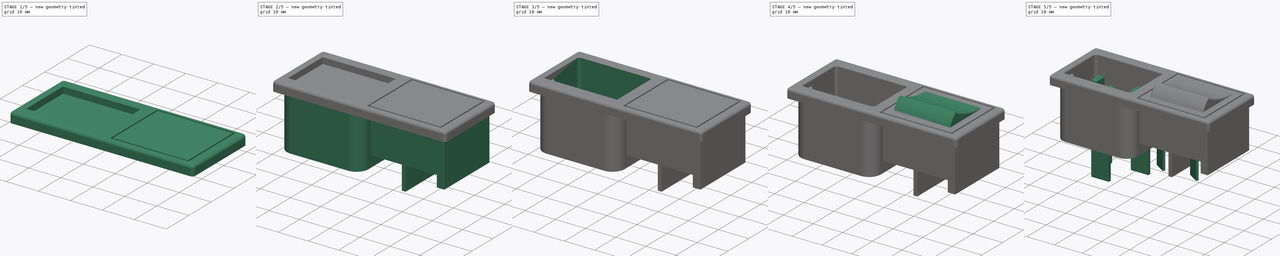
[diagram: build sequence overview — one tinted view per stage of 5, left to right]
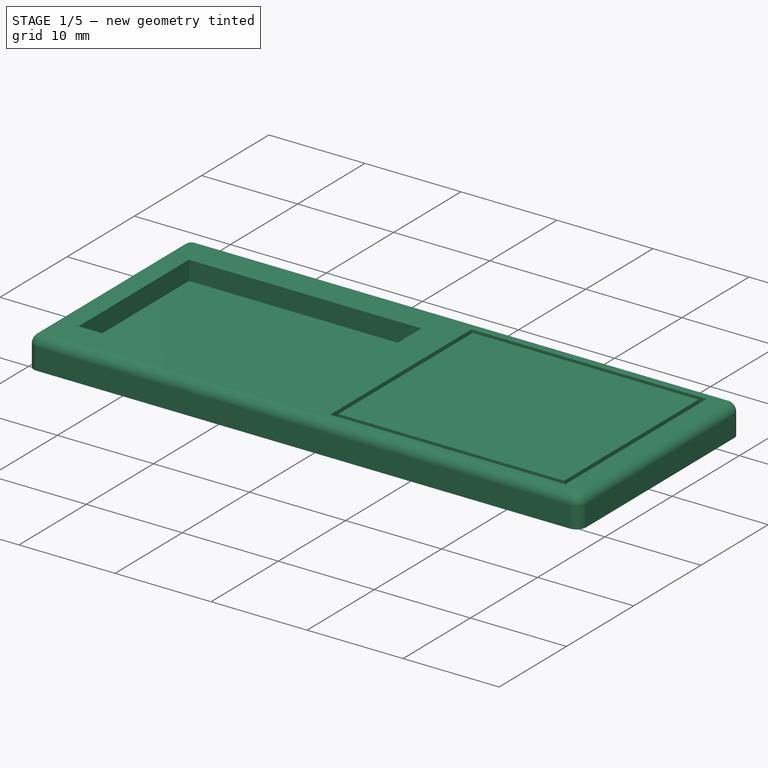
[diagram: stage 1 of 5 — iso view after this stage's code; geometry added in this stage tinted green]
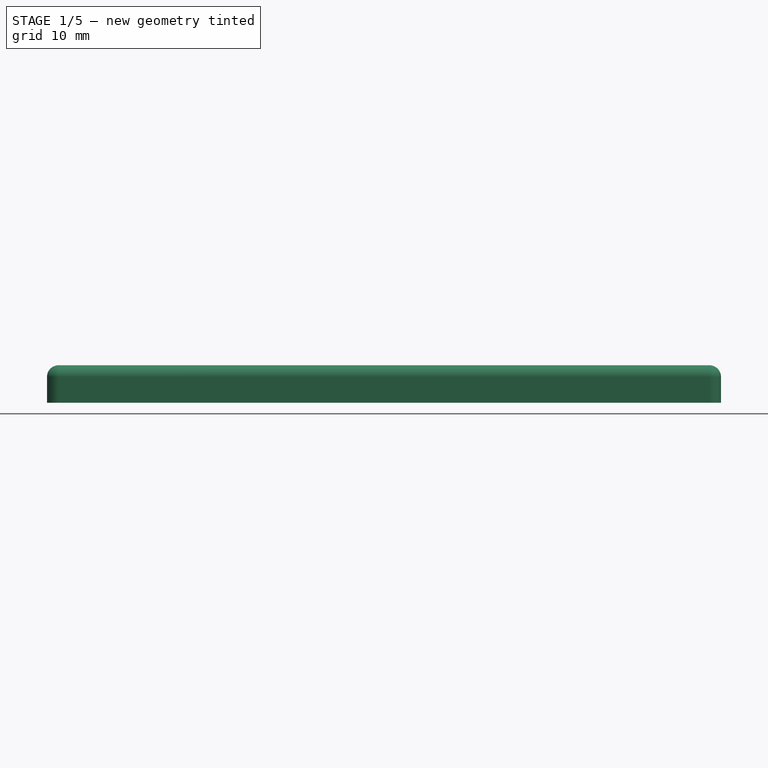
[diagram: stage 1 of 5 — front view after this stage's code; geometry added in this stage tinted green]
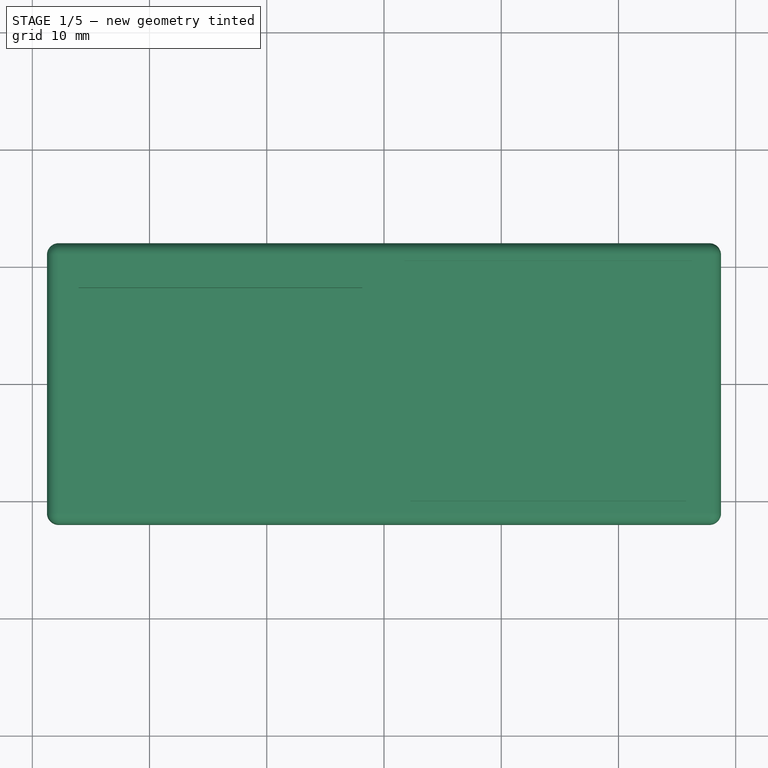
[diagram: stage 1 of 5 — top view after this stage's code; geometry added in this stage tinted green]
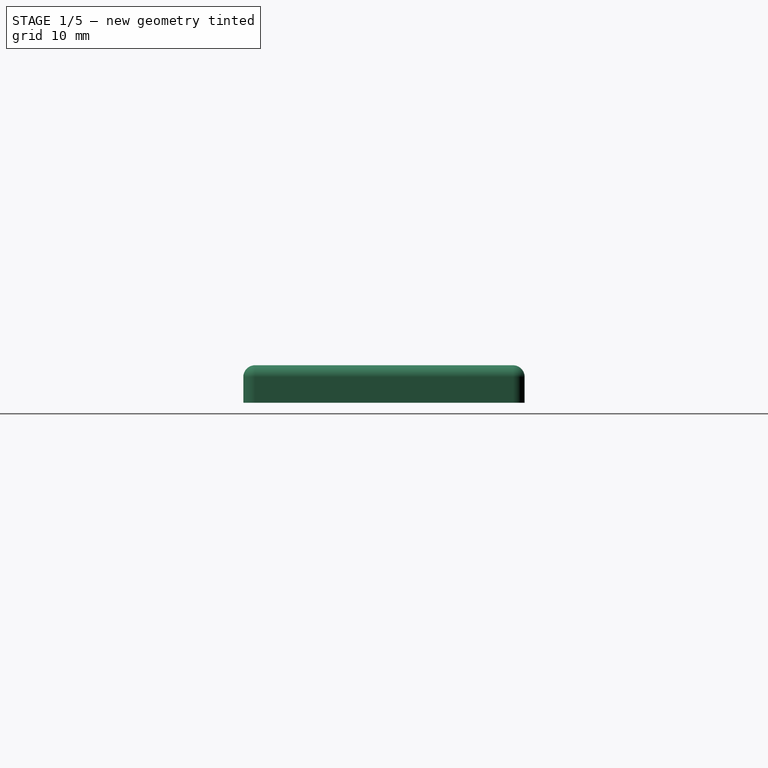
[diagram: stage 1 of 5 — right view after this stage's code; geometry added in this stage tinted green]
FCSTD DOCUMENT  (FreeCAD 0.14R3310 (Git))
Label: 46. INTERRUPTOR BZM27-Z0000-57B
License: CC-BY 3.0
LicenseURL: http://creativecommons.org/licenses/by/3.0/
objects: Sketcher::SketchObject×14, PartDesign::Pad×9, PartDesign::Fillet×8, PartDesign::Pocket×5, PartDesign::Chamfer×2
note: 52 computed .brp shape members not serialized (recipe doc carries the construction recipe); baked Part::Feature solids carry a one-line shape summary decoded from their .brp

FEATURE [Sketcher::SketchObject] Sketch
  sketch-geometry (4):
    g0: LineSegment StartX=-28.75 StartY=12 StartZ=0 EndX=28.75 EndY=12 EndZ=0
    g1: LineSegment StartX=28.75 StartY=12 StartZ=0 EndX=28.75 EndY=-12 EndZ=0
    g2: LineSegment StartX=28.75 StartY=-12 StartZ=0 EndX=-28.75 EndY=-12 EndZ=0
    g3: LineSegment StartX=-28.75 StartY=-12 StartZ=0 EndX=-28.75 EndY=12 EndZ=0
  constraints (11):
    c: Coincident(g0,g1)
    c: Coincident(g1,g2)
    c: Coincident(g2,g3)
    c: Coincident(g3,g0)
    c: Horizontal(g0)
    c: Horizontal(g2)
    c: Vertical(g1)
    c: Vertical(g3)
    c: Symmetric(g1,g0,g-1)
    c: Distance(g1) = 24
    c: Distance(g0) = 57.5
FEATURE [PartDesign::Pad] Pad
  Length = 3.2
  Length2 = 100
  Sketch = -> Sketch
  Type = 0
FEATURE [PartDesign::Fillet] Fillet
  Base = -> Pad [Edge5,Edge2,Edge1,Edge8]
  Radius = 1
FEATURE [PartDesign::Fillet] Fillet001
  Base = -> Fillet [Edge4,Edge13,Edge15,Edge16,Edge17,Edge18,Edge19,Edge20]
  Radius = 1
FEATURE [Sketcher::SketchObject] Sketch001
  ExternalGeometry = -> [Fillet001]
  Placement = pos=(0,0,3.2) rot=(0,0,1;0rad)
  Support = -> Fillet001 [Face8]
  sketch-geometry (8):
    g0: LineSegment StartX=1.75 StartY=10.5 StartZ=0 EndX=26.25 EndY=10.5 EndZ=0
    g1: LineSegment StartX=26.25 StartY=10.5 StartZ=0 EndX=26.25 EndY=-10.5 EndZ=0
    g2: LineSegment StartX=26.25 StartY=-10.5 StartZ=0 EndX=1.75 EndY=-10.5 EndZ=0
    g3: LineSegment StartX=1.75 StartY=-10.5 StartZ=0 EndX=1.75 EndY=10.5 EndZ=0
    g4: LineSegment StartX=2.25 StartY=10 StartZ=0 EndX=25.75 EndY=10 EndZ=0
    g5: LineSegment StartX=25.75 StartY=10 StartZ=0 EndX=25.75 EndY=-10 EndZ=0
    g6: LineSegment StartX=25.75 StartY=-10 StartZ=0 EndX=2.25 EndY=-10 EndZ=0
    g7: LineSegment StartX=2.25 StartY=-10 StartZ=0 EndX=2.25 EndY=10 EndZ=0
  constraints (24):
    c: Coincident(g0,g1)
    c: Coincident(g1,g2)
    c: Coincident(g2,g3)
    c: Coincident(g3,g0)
    c: Horizontal(g0)
    c: Horizontal(g2)
    c: Vertical(g1)
    c: Vertical(g3)
    c: Coincident(g4,g5)
    c: Coincident(g5,g6)
    c: Coincident(g6,g7)
    c: Coincident(g7,g4)
    c: Horizontal(g4)
    c: Horizontal(g6)
    c: Vertical(g5)
    c: Vertical(g7)
    c: Distance(g0,g-3) = 0.5
    c: Distance(g0) = 24.5
    c: Distance(g0,g-4) = 1.5
    c: Distance(g1) = 21
    c: Distance(g4,g1) = 0.5
    c: Distance(g4,g0) = 0.5
    c: Distance(g6,g3) = 0.5
    c: Distance(g6,g2) = 0.5
FEATURE [PartDesign::Pocket] Pocket
  Length = 1
  Sketch = -> Sketch001
  Type = 0
FEATURE [Sketcher::SketchObject] Sketch002
  ExternalGeometry = -> [Pocket]
  Placement = pos=(0,0,3.2) rot=(0,0,1;0rad)
  Support = -> Pocket [Face8]
  sketch-geometry (4):
    g0: LineSegment StartX=-26.05 StartY=8.2 StartZ=0 EndX=-1.85 EndY=8.2 EndZ=0
    g1: LineSegment StartX=-1.85 StartY=8.2 StartZ=0 EndX=-1.85 EndY=-8.2 EndZ=0
    g2: LineSegment StartX=-1.85 StartY=-8.2 StartZ=0 EndX=-26.05 EndY=-8.2 EndZ=0
    g3: LineSegment StartX=-26.05 StartY=-8.2 StartZ=0 EndX=-26.05 EndY=8.2 EndZ=0
  constraints (12):
    c: Coincident(g0,g1)
    c: Coincident(g1,g2)
    c: Coincident(g2,g3)
    c: Coincident(g3,g0)
    c: Horizontal(g0)
    c: Horizontal(g2)
    c: Vertical(g1)
    c: Vertical(g3)
    c: Distance(g3) = 16.4
    c: Distance(g0) = 24.2
    c: Distance(g2,g-4) = 2.8
    c: Distance(g2,g-3) = 1.7
FEATURE [PartDesign::Pocket] Pocket001
  Length = 2
  Sketch = -> Sketch002
  Type = 0
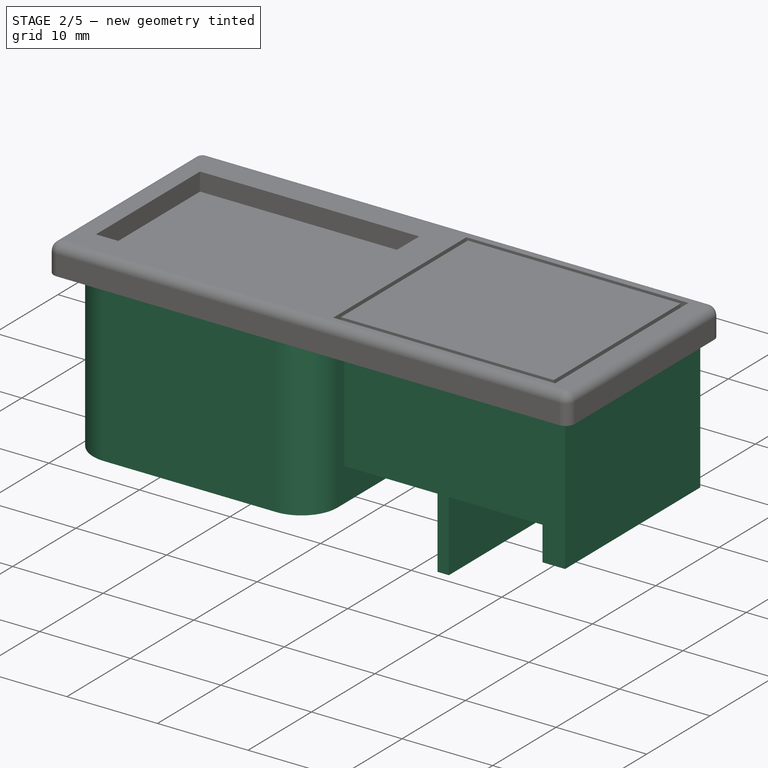
[diagram: stage 2 of 5 — iso view after this stage's code; geometry added in this stage tinted green]
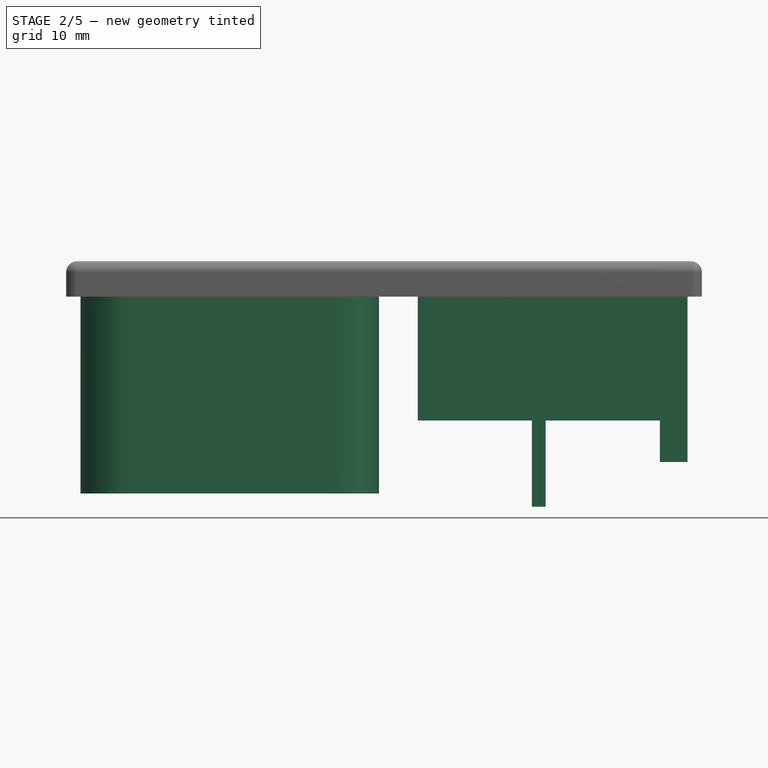
[diagram: stage 2 of 5 — front view after this stage's code; geometry added in this stage tinted green]
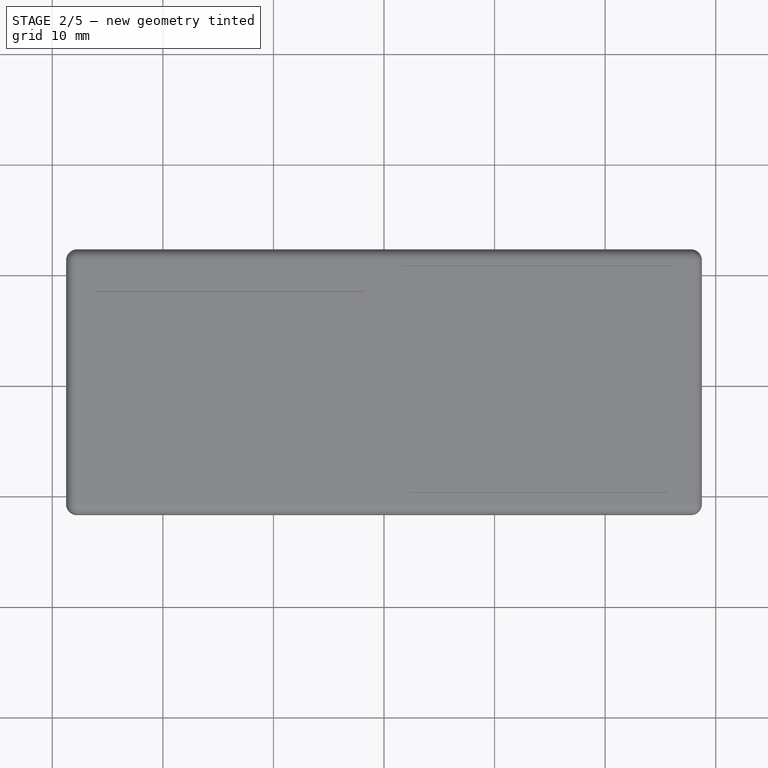
[diagram: stage 2 of 5 — top view after this stage's code; geometry added in this stage tinted green]
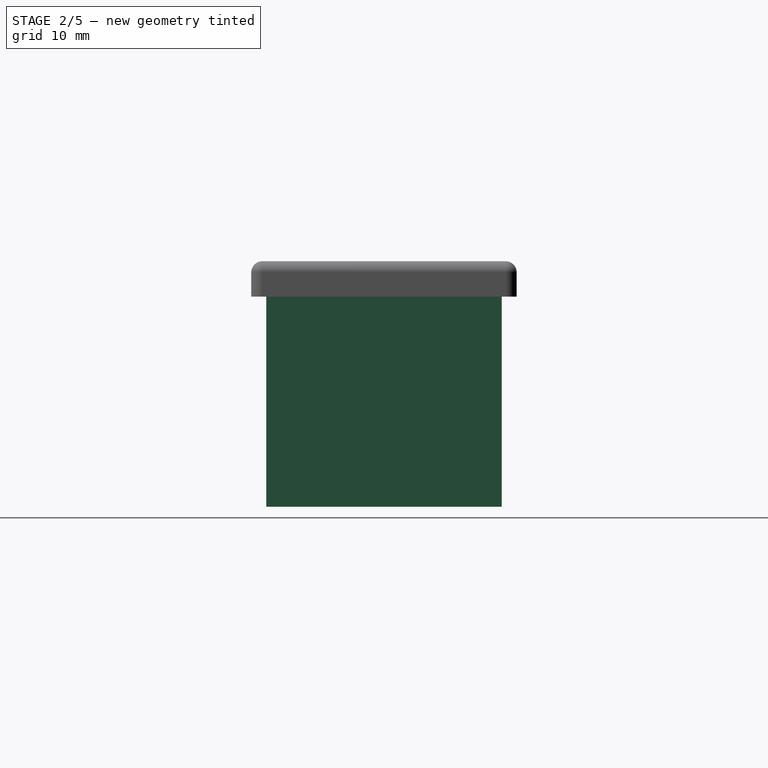
[diagram: stage 2 of 5 — right view after this stage's code; geometry added in this stage tinted green]
FEATURE [Sketcher::SketchObject] Sketch003
  ExternalGeometry = -> [Pocket001]
  Placement = pos=(0,0,0) rot=(1,0,0;3.14159rad)
  Support = -> Pocket001 [Face4]
  sketch-geometry (4):
    g0: LineSegment StartX=-27.45 StartY=10.65 StartZ=0 EndX=-0.45 EndY=10.65 EndZ=0
    g1: LineSegment StartX=-0.45 StartY=10.65 StartZ=0 EndX=-0.45 EndY=-10.65 EndZ=0
    g2: LineSegment StartX=-0.45 StartY=-10.65 StartZ=0 EndX=-27.45 EndY=-10.65 EndZ=0
    g3: LineSegment StartX=-27.45 StartY=-10.65 StartZ=0 EndX=-27.45 EndY=10.65 EndZ=0
  constraints (12):
    c: Coincident(g0,g1)
    c: Coincident(g1,g2)
    c: Coincident(g2,g3)
    c: Coincident(g3,g0)
    c: Horizontal(g0)
    c: Horizontal(g2)
    c: Vertical(g1)
    c: Vertical(g3)
    c: Distance(g1) = 21.3
    c: Distance(g0) = 27
    c: Distance(g2,g-4) = 1.35
    c: Distance(g2,g-3) = 1.3
FEATURE [PartDesign::Pad] Pad001
  Length = 17.8
  Length2 = 100
  Sketch = -> Sketch003
  Type = 0
FEATURE [Sketcher::SketchObject] Sketch004
  ExternalGeometry = -> [Pad001]
  Placement = pos=(0,0,0) rot=(1,0,0;3.14159rad)
  Support = -> Pad001 [Face4]
  sketch-geometry (4):
    g0: LineSegment StartX=3.05 StartY=10.65 StartZ=0 EndX=27.45 EndY=10.65 EndZ=0
    g1: LineSegment StartX=27.45 StartY=10.65 StartZ=0 EndX=27.45 EndY=-10.65 EndZ=0
    g2: LineSegment StartX=27.45 StartY=-10.65 StartZ=0 EndX=3.05 EndY=-10.65 EndZ=0
    g3: LineSegment StartX=3.05 StartY=-10.65 StartZ=0 EndX=3.05 EndY=10.65 EndZ=0
  constraints (12):
    c: Coincident(g0,g1)
    c: Coincident(g1,g2)
    c: Coincident(g2,g3)
    c: Coincident(g3,g0)
    c: Horizontal(g0)
    c: Horizontal(g2)
    c: Vertical(g1)
    c: Vertical(g3)
    c: Distance(g0) = 24.4
    c: Distance(g1) = 21.3
    c: Distance(g1,g-3) = 1.35
    c: Distance(g1,g-4) = 1.3
FEATURE [PartDesign::Pad] Pad002
  Length = 11.2
  Length2 = 100
  Sketch = -> Sketch004
  Type = 0
FEATURE [Sketcher::SketchObject] Sketch005
  ExternalGeometry = -> [Pad002]
  Placement = pos=(0,0,-11.2) rot=(1,0,0;3.14159rad)
  Support = -> Pad002 [Face36]
  sketch-geometry (4):
    g0: LineSegment StartX=27.45 StartY=10.65 StartZ=0 EndX=24.95 EndY=10.65 EndZ=0
    g1: LineSegment StartX=24.95 StartY=10.65 StartZ=0 EndX=24.95 EndY=-10.65 EndZ=0
    g2: LineSegment StartX=24.95 StartY=-10.65 StartZ=0 EndX=27.45 EndY=-10.65 EndZ=0
    g3: LineSegment StartX=27.45 StartY=-10.65 StartZ=0 EndX=27.45 EndY=10.65 EndZ=0
  constraints (11):
    c: Coincident(g0,g1)
    c: Coincident(g1,g2)
    c: Coincident(g2,g3)
    c: Coincident(g3,g0)
    c: Horizontal(g0)
    c: Horizontal(g2)
    c: Vertical(g1)
    c: Vertical(g3)
    c: Coincident(g0,g-3)
    c: Coincident(g2,g-3)
    c: Distance(g0) = 2.5
FEATURE [PartDesign::Pad] Pad003
  Length = 3.75
  Length2 = 100
  Sketch = -> Sketch005
  Type = 0
FEATURE [PartDesign::Fillet] Fillet002
  Base = -> Pad003 [Edge51,Edge54,Edge57,Edge53]
  Radius = 4
FEATURE [Sketcher::SketchObject] Sketch006
  ExternalGeometry = -> [Fillet002]
  Placement = pos=(0,0,-11.2) rot=(1,0,0;3.14159rad)
  Support = -> Fillet002 [Face33]
  sketch-geometry (4):
    g0: LineSegment StartX=13.37 StartY=10.65 StartZ=0 EndX=14.62 EndY=10.65 EndZ=0
    g1: LineSegment StartX=14.62 StartY=10.65 StartZ=0 EndX=14.62 EndY=-10.65 EndZ=0
    g2: LineSegment StartX=14.62 StartY=-10.65 StartZ=0 EndX=13.37 EndY=-10.65 EndZ=0
    g3: LineSegment StartX=13.37 StartY=-10.65 StartZ=0 EndX=13.37 EndY=10.65 EndZ=0
  constraints (12):
    c: Coincident(g0,g1)
    c: Coincident(g1,g2)
    c: Coincident(g2,g3)
    c: Coincident(g3,g0)
    c: Horizontal(g0)
    c: Horizontal(g2)
    c: Vertical(g1)
    c: Vertical(g3)
    c: PointOnObject(g2,g-4)
    c: PointOnObject(g0,g-3)
    c: Distance(g0,g0) = 1.25
    c: Distance(g-3,g0) = 10.33
FEATURE [PartDesign::Pad] Pad004
  Length = 7.8
  Length2 = 100
  Sketch = -> Sketch006
  Type = 0
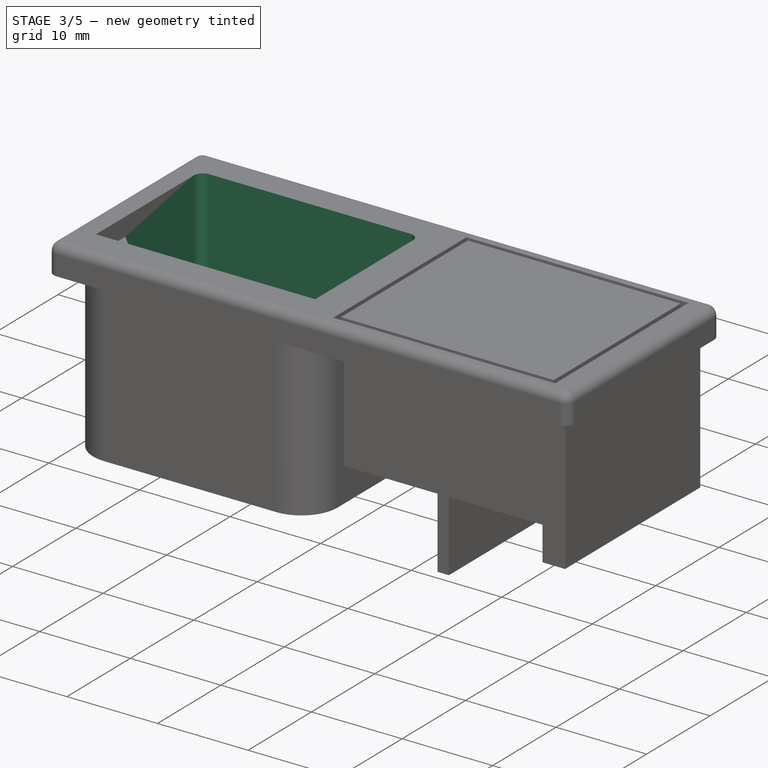
[diagram: stage 3 of 5 — iso view after this stage's code; geometry added in this stage tinted green]
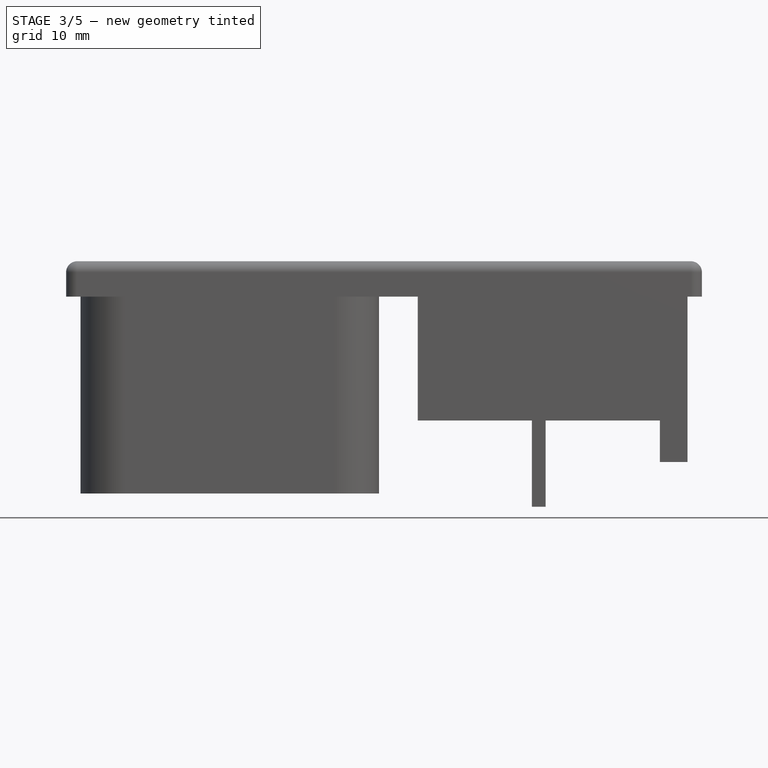
[diagram: stage 3 of 5 — front view after this stage's code; geometry added in this stage tinted green]
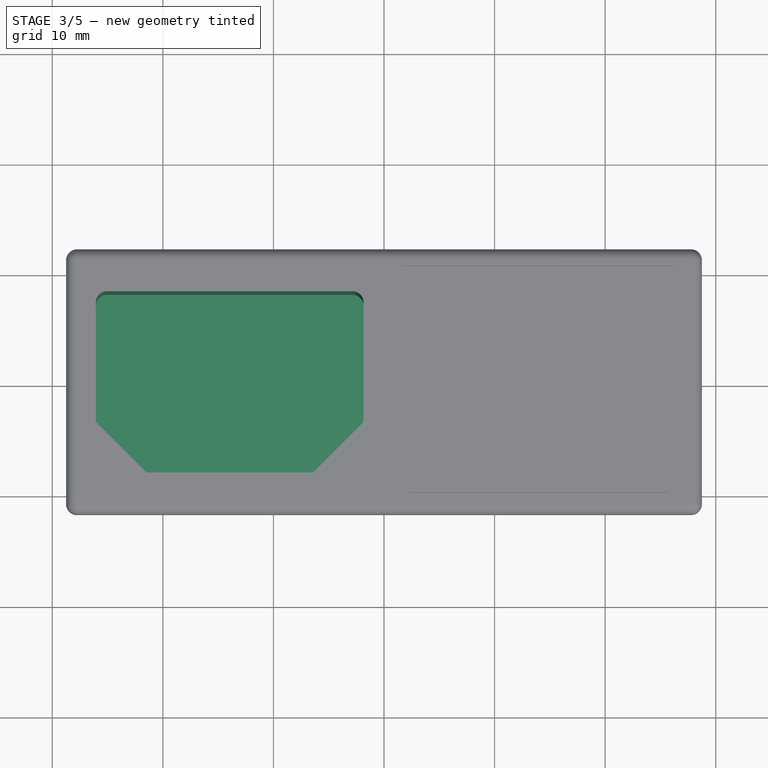
[diagram: stage 3 of 5 — top view after this stage's code; geometry added in this stage tinted green]
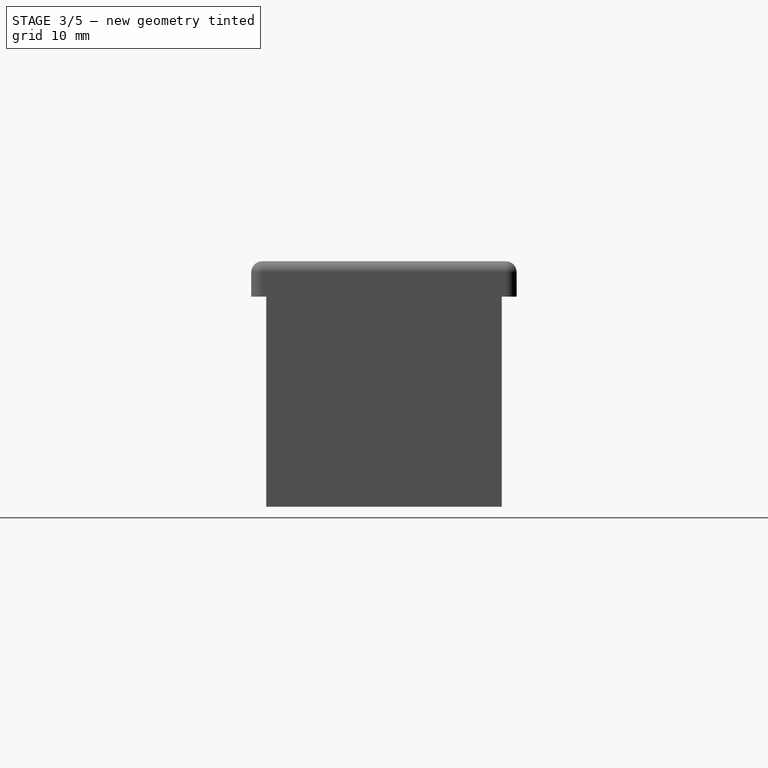
[diagram: stage 3 of 5 — right view after this stage's code; geometry added in this stage tinted green]
FEATURE [Sketcher::SketchObject] Sketch007
  ExternalGeometry = -> [Pad004]
  Placement = pos=(0,0,1.2) rot=(0,0,1;0rad)
  Support = -> Pad004 [Face46]
  sketch-geometry (4):
    g0: LineSegment StartX=-26.05 StartY=8.2 StartZ=0 EndX=-1.85 EndY=8.2 EndZ=0
    g1: LineSegment StartX=-1.85 StartY=8.2 StartZ=0 EndX=-1.85 EndY=-8.2 EndZ=0
    g2: LineSegment StartX=-1.85 StartY=-8.2 StartZ=0 EndX=-26.05 EndY=-8.2 EndZ=0
    g3: LineSegment StartX=-26.05 StartY=-8.2 StartZ=0 EndX=-26.05 EndY=8.2 EndZ=0
  constraints (10):
    c: Coincident(g0,g1)
    c: Coincident(g1,g2)
    c: Coincident(g2,g3)
    c: Coincident(g3,g0)
    c: Horizontal(g0)
    c: Horizontal(g2)
    c: Vertical(g1)
    c: Vertical(g3)
    c: Coincident(g0,g-5)
    c: Coincident(g1,g-6)
FEATURE [PartDesign::Pocket] Pocket002
  Length = 17
  Sketch = -> Sketch007
  Type = 0
FEATURE [PartDesign::Chamfer] Chamfer
  Base = -> Pocket002 [Edge5,Edge129]
  Size = 4.6
FEATURE [Sketcher::SketchObject] Sketch008
  ExternalGeometry = -> [Chamfer]
  Placement = pos=(0,0,3.2) rot=(0,0,1;0rad)
  Support = -> Chamfer [Face8]
  sketch-geometry (4):
    g0: LineSegment StartX=-26.05 StartY=8.2 StartZ=0 EndX=-1.85 EndY=8.2 EndZ=0
    g1: LineSegment StartX=-1.85 StartY=8.2 StartZ=0 EndX=-1.85 EndY=-8.2 EndZ=0
    g2: LineSegment StartX=-1.85 StartY=-8.2 StartZ=0 EndX=-26.05 EndY=-8.2 EndZ=0
    g3: LineSegment StartX=-26.05 StartY=-8.2 StartZ=0 EndX=-26.05 EndY=8.2 EndZ=0
  constraints (11):
    c: Coincident(g0,g1)
    c: Coincident(g1,g2)
    c: Coincident(g2,g3)
    c: Coincident(g3,g0)
    c: Horizontal(g0)
    c: Horizontal(g2)
    c: Vertical(g1)
    c: Vertical(g3)
    c: PointOnObject(g-5,g2)
    c: Coincident(g-4,g0)
    c: Coincident(g0,g-3)
FEATURE [PartDesign::Pocket] Pocket003
  Length = 2
  Sketch = -> Sketch008
  Type = 0
FEATURE [PartDesign::Fillet] Fillet003
  Base = -> Pocket003 [Edge19,Edge141]
  Radius = 1
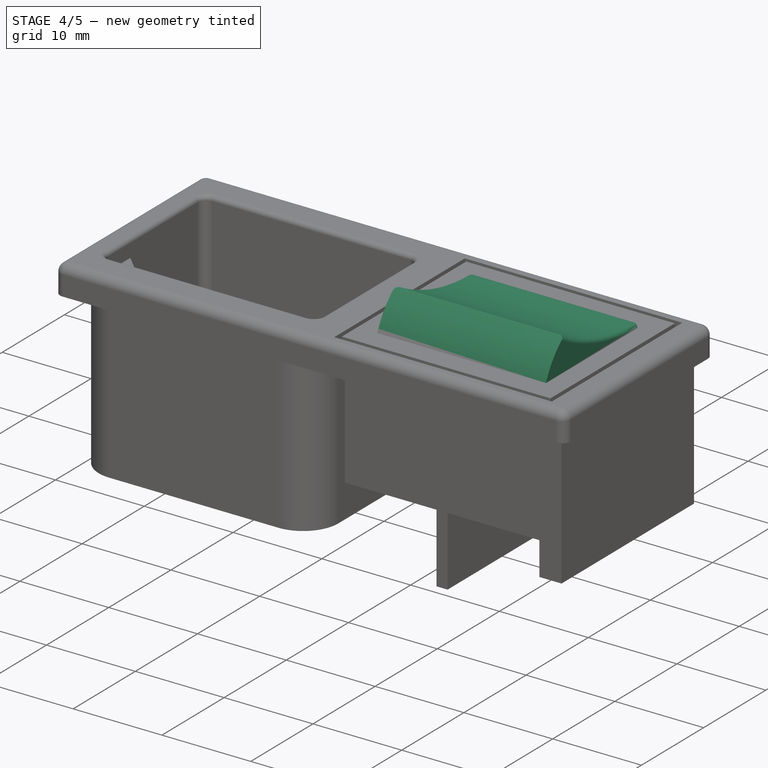
[diagram: stage 4 of 5 — iso view after this stage's code; geometry added in this stage tinted green]
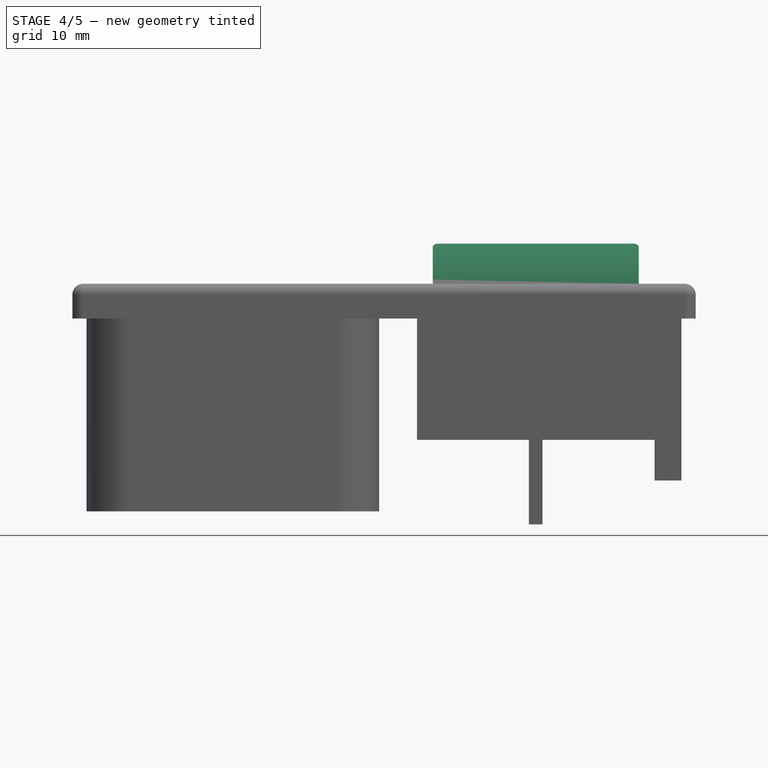
[diagram: stage 4 of 5 — front view after this stage's code; geometry added in this stage tinted green]
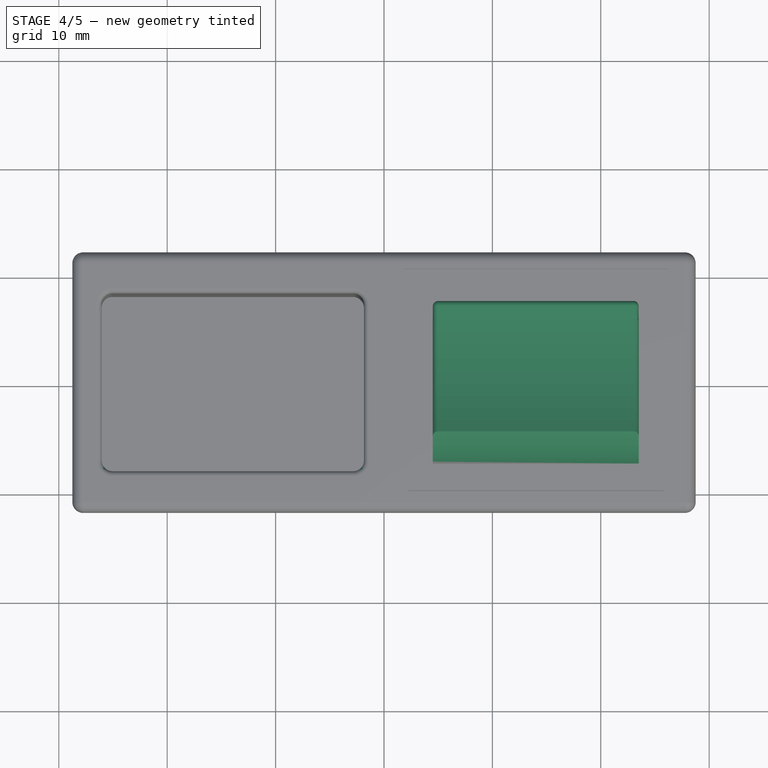
[diagram: stage 4 of 5 — top view after this stage's code; geometry added in this stage tinted green]
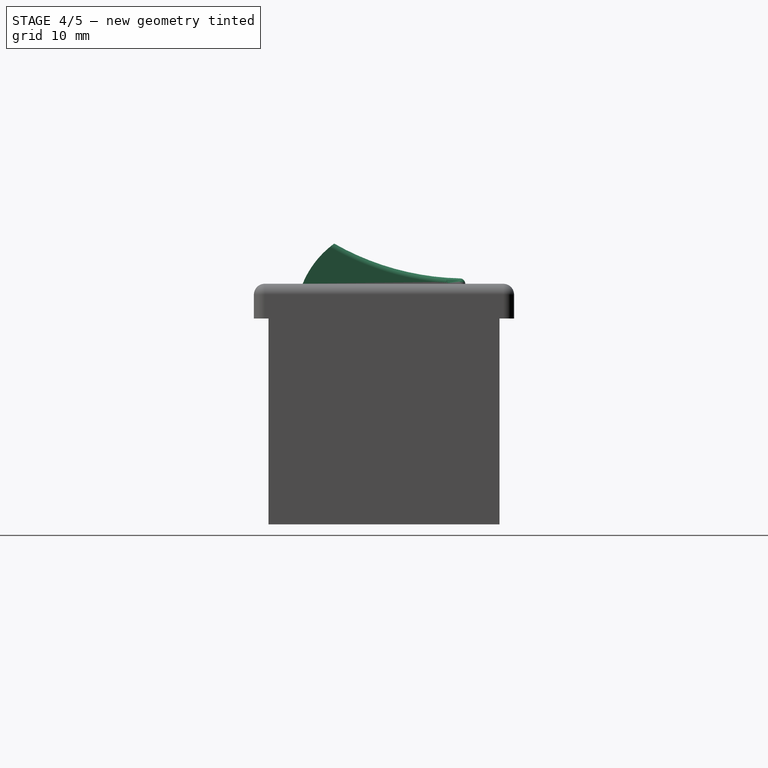
[diagram: stage 4 of 5 — right view after this stage's code; geometry added in this stage tinted green]
FEATURE [PartDesign::Fillet] Fillet004
  Base = -> Fillet003 [Edge11,Edge22]
  Radius = 1
FEATURE [PartDesign::Fillet] Fillet005
  Base = -> Fillet004 [Edge12,Edge10,Edge1,Edge13,Edge11,Edge9,Edge7,Edge8]
  Radius = 0.5
FEATURE [Sketcher::SketchObject] Sketch009
  ExternalGeometry = -> [Fillet005]
  Placement = pos=(28.75,0,0) rot=(0.57735,0.57735,0.57735;2.0944rad)
  Support = -> Fillet005 [Face36]
  sketch-geometry (4):
    g0: ArcOfCircle CenterX=0.49 CenterY=-0.08 CenterZ=0 NormalX=0 NormalY=0 NormalZ=1 Radius=8.64 StartAngle=2.19995 EndAngle=2.7522
    g1: ArcOfCircle CenterX=7.55 CenterY=28.23 CenterZ=0 NormalX=0 NormalY=0 NormalZ=1 Radius=24.54 StartAngle=4.19469 EndAngle=4.69042
    g2: ArcOfCircle CenterX=7 CenterY=3.19604 CenterZ=0 NormalX=0 NormalY=0 NormalZ=1 Radius=0.5 StartAngle=0.00791795 EndAngle=1.54882
    g3: LineSegment StartX=-7.5032 StartY=3.2 StartZ=0 EndX=7.49998 EndY=3.2 EndZ=0
  constraints (15):
    c: PointOnObject(g0,g-3)
    c: DistanceY(g-1,g0) = -0.08
    c: DistanceX(g-2,g0) = 0.49
    c: Radius(g0) = 8.64
    c: Coincident(g1,g0)
    c: Radius(g1) = 24.54
    c: DistanceX(g-2,g1) = 7.55
    c: DistanceY(g-1,g1) = 28.23
    c: PointOnObject(g2,g-3)
    c: Coincident(g1,g2)
    c: Radius(g2) = 0.5
    c: DistanceX(g-2,g2) = 7
    c: Tangent(g2,g1)
    c: Coincident(g3,g0)
    c: Coincident(g3,g2)
FEATURE [PartDesign::Pad] Pad005
  Length = 24.25
  Length2 = 100
  Reversed = true
  Sketch = -> Sketch009
  Type = 0
FEATURE [Sketcher::SketchObject] Sketch010
  ExternalGeometry = -> [Pad005]
  Placement = pos=(28.75,0,0) rot=(0.57735,0.57735,0.57735;2.0944rad)
  Support = -> Pad005 [Face4]
  sketch-geometry (4):
    g0: ArcOfCircle CenterX=7.55 CenterY=28.23 CenterZ=0 NormalX=0 NormalY=0 NormalZ=1 Radius=24.54 StartAngle=4.19469 EndAngle=4.69042
    g1: ArcOfCircle CenterX=0.49 CenterY=-0.08 CenterZ=0 NormalX=0 NormalY=0 NormalZ=1 Radius=8.64 StartAngle=2.19995 EndAngle=2.7522
    g2: LineSegment StartX=-7.5032 StartY=3.2 StartZ=0 EndX=7.49998 EndY=3.2 EndZ=0
    g3: ArcOfCircle CenterX=7 CenterY=3.19604 CenterZ=0 NormalX=0 NormalY=0 NormalZ=1 Radius=0.5 StartAngle=0.00791795 EndAngle=1.54882
  constraints (11):
    c: Equal(g0,g-4)
    c: Coincident(g0,g-4)
    c: Coincident(g0,g-6)
    c: Coincident(g1,g0)
    c: Coincident(g1,g-5)
    c: Coincident(g1,g-3)
    c: Coincident(g2,g1)
    c: Coincident(g2,g-6)
    c: Coincident(g3,g2)
    c: Coincident(g3,g0)
    c: Equal(g3,g-6)
FEATURE [PartDesign::Pocket] Pocket004
  Length = 5.25
  Sketch = -> Sketch010
  Type = 0
FEATURE [PartDesign::Fillet] Fillet006
  Base = -> Pocket004 [Edge131,Edge133]
  Radius = 0.49
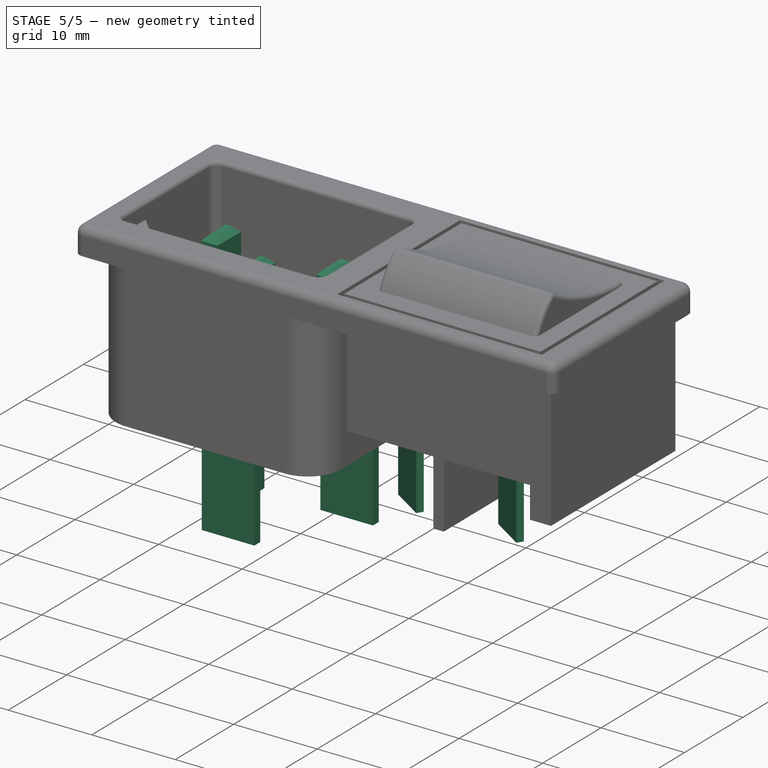
[diagram: stage 5 of 5 — iso view after this stage's code; geometry added in this stage tinted green]
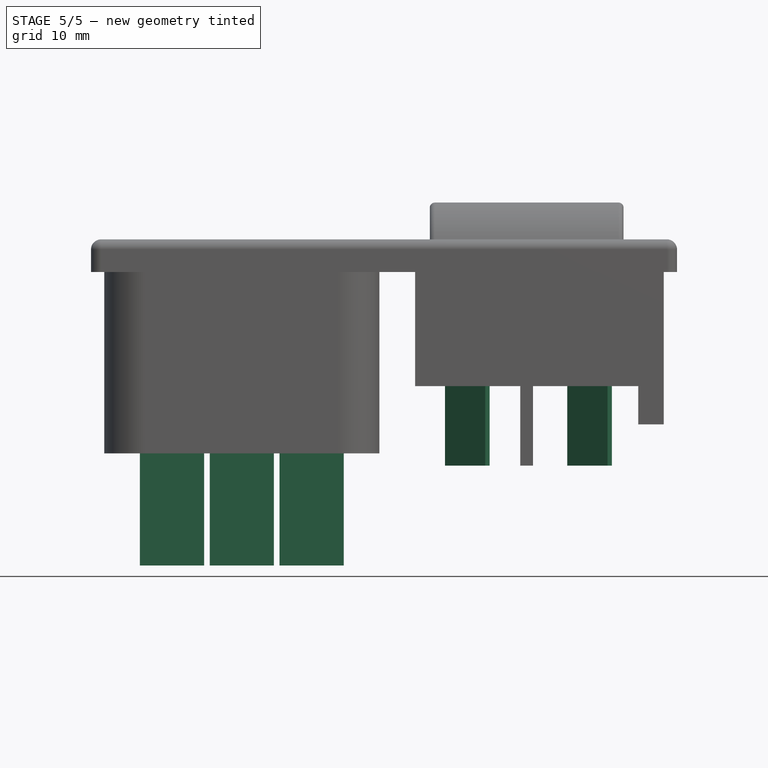
[diagram: stage 5 of 5 — front view after this stage's code; geometry added in this stage tinted green]
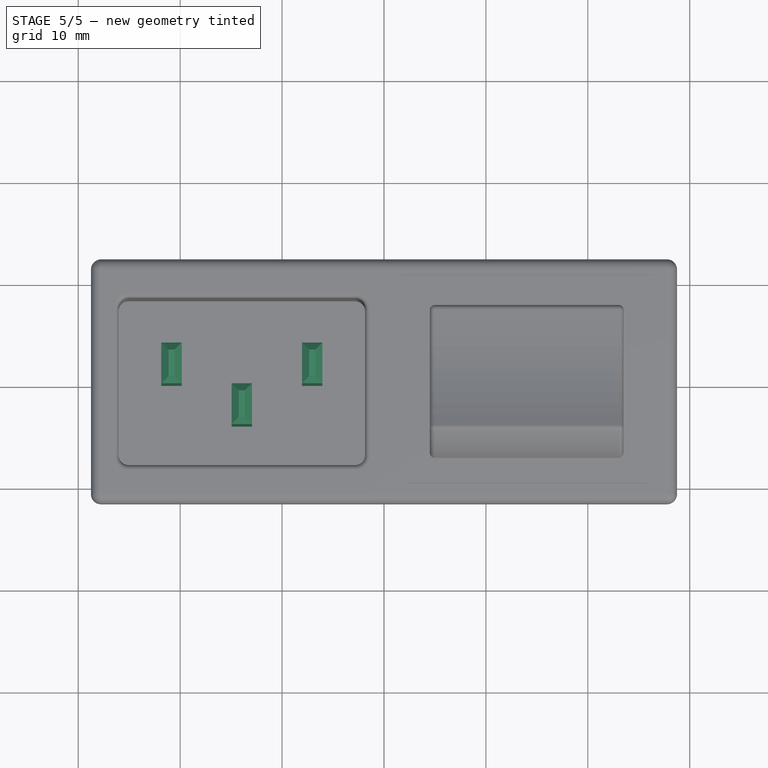
[diagram: stage 5 of 5 — top view after this stage's code; geometry added in this stage tinted green]
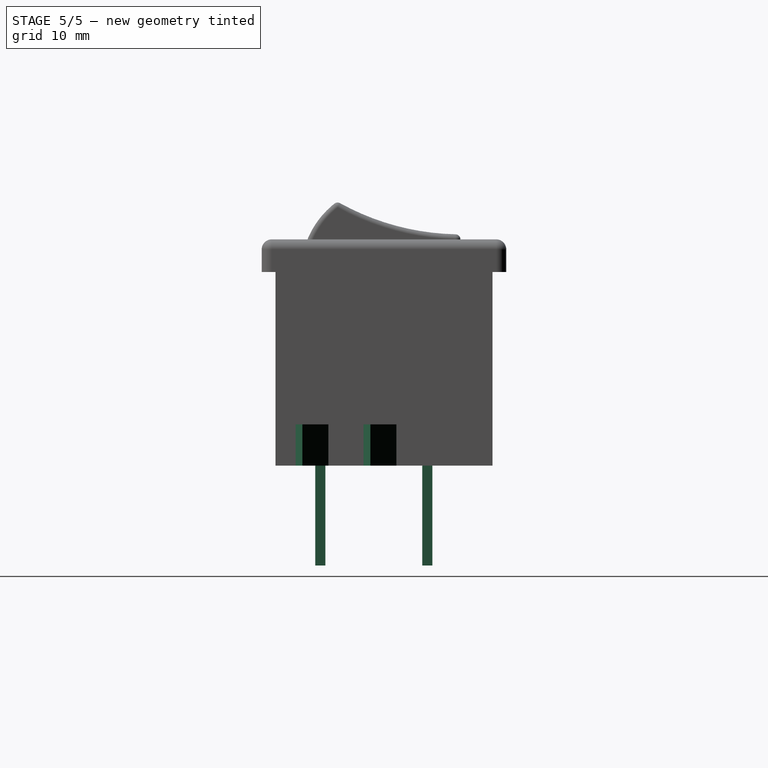
[diagram: stage 5 of 5 — right view after this stage's code; geometry added in this stage tinted green]
FEATURE [PartDesign::Fillet] Fillet007
  Base = -> Fillet006 [Edge11,Edge17,Edge18]
  Radius = 0.49
FEATURE [Sketcher::SketchObject] Sketch011
  ExternalGeometry = -> [Fillet007]
  Placement = pos=(0,0,-17.8) rot=(1,0,0;3.14159rad)
  Support = -> Fillet007 [Face78]
  sketch-geometry (12):
    g0: LineSegment StartX=-17.1 StartY=6.75 StartZ=0 EndX=-10.8 EndY=6.75 EndZ=0
    g1: LineSegment StartX=-10.8 StartY=6.75 StartZ=0 EndX=-10.8 EndY=5.75 EndZ=0
    g2: LineSegment StartX=-10.8 StartY=5.75 StartZ=0 EndX=-17.1 EndY=5.75 EndZ=0
    g3: LineSegment StartX=-17.1 StartY=5.75 StartZ=0 EndX=-17.1 EndY=6.75 EndZ=0
    g4: LineSegment StartX=-23.95 StartY=-4.75 StartZ=0 EndX=-17.65 EndY=-4.75 EndZ=0
    g5: LineSegment StartX=-17.65 StartY=-4.75 StartZ=0 EndX=-17.65 EndY=-3.75 EndZ=0
    g6: LineSegment StartX=-17.65 StartY=-3.75 StartZ=0 EndX=-23.95 EndY=-3.75 EndZ=0
    g7: LineSegment StartX=-23.95 StartY=-3.75 StartZ=0 EndX=-23.95 EndY=-4.75 EndZ=0
    g8: LineSegment StartX=-10.25 StartY=-4.75 StartZ=0 EndX=-3.95 EndY=-4.75 EndZ=0
    g9: LineSegment StartX=-3.95 StartY=-4.75 StartZ=0 EndX=-3.95 EndY=-3.75 EndZ=0
    g10: LineSegment StartX=-3.95 StartY=-3.75 StartZ=0 EndX=-10.25 EndY=-3.75 EndZ=0
    g11: LineSegment StartX=-10.25 StartY=-3.75 StartZ=0 EndX=-10.25 EndY=-4.75 EndZ=0
  constraints (36):
    c: Coincident(g0,g1)
    c: Coincident(g1,g2)
    c: Coincident(g2,g3)
    c: Coincident(g3,g0)
    c: Horizontal(g0)
    c: Horizontal(g2)
    c: Vertical(g1)
    c: Vertical(g3)
    c: Coincident(g4,g5)
    c: Coincident(g5,g6)
    c: Coincident(g6,g7)
    c: Coincident(g7,g4)
    c: Horizontal(g4)
    c: Horizontal(g6)
    c: Vertical(g5)
    c: Vertical(g7)
    c: Coincident(g8,g9)
    c: Coincident(g9,g10)
    c: Coincident(g10,g11)
    c: Coincident(g11,g8)
    c: Horizontal(g8)
    c: Horizontal(g10)
    c: Vertical(g9)
    c: Vertical(g11)
    c: Distance(g0) = 6.3
    c: Equal(g0,g4)
    c: Equal(g4,g8)
    c: Distance(g1) = 1
    c: Equal(g1,g5)
    c: Equal(g5,g9)
    c: Distance(g0,g-3) = 3.9
    c: Distance(g0,g-4) = 10.35
    c: Distance(g4,g-4) = 3.5
    c: Distance(g4,g8) = 7.4
    c: Distance(g4,g2) = 10.5
    c: Distance(g8,g2) = 10.5
FEATURE [PartDesign::Pad] Pad006
  Length = 11
  Length2 = 100
  Sketch = -> Sketch011
  Type = 0
FEATURE [Sketcher::SketchObject] Sketch012
  ExternalGeometry = -> [Pad006]
  Placement = pos=(0,0,-15.8) rot=(0,0,1;0rad)
  Support = -> Pad006 [Face64]
  sketch-geometry (12):
    g0: LineSegment StartX=-14.95 StartY=-0.1 StartZ=0 EndX=-12.95 EndY=-0.1 EndZ=0
    g1: LineSegment StartX=-12.95 StartY=-0.1 StartZ=0 EndX=-12.95 EndY=-4.1 EndZ=0
    g2: LineSegment StartX=-12.95 StartY=-4.1 StartZ=0 EndX=-14.95 EndY=-4.1 EndZ=0
    g3: LineSegment StartX=-14.95 StartY=-4.1 StartZ=0 EndX=-14.95 EndY=-0.1 EndZ=0
    g4: LineSegment StartX=-21.85 StartY=3.9 StartZ=0 EndX=-19.85 EndY=3.9 EndZ=0
    g5: LineSegment StartX=-19.85 StartY=3.9 StartZ=0 EndX=-19.85 EndY=-0.1 EndZ=0
    g6: LineSegment StartX=-19.85 StartY=-0.1 StartZ=0 EndX=-21.85 EndY=-0.1 EndZ=0
    g7: LineSegment StartX=-21.85 StartY=-0.1 StartZ=0 EndX=-21.85 EndY=3.9 EndZ=0
    g8: LineSegment StartX=-8.05 StartY=3.9 StartZ=0 EndX=-6.05 EndY=3.9 EndZ=0
    g9: LineSegment StartX=-6.05 StartY=3.9 StartZ=0 EndX=-6.05 EndY=-0.1 EndZ=0
    g10: LineSegment StartX=-6.05 StartY=-0.1 StartZ=0 EndX=-8.05 EndY=-0.1 EndZ=0
    g11: LineSegment StartX=-8.05 StartY=-0.1 StartZ=0 EndX=-8.05 EndY=3.9 EndZ=0
  constraints (39):
    c: Coincident(g0,g1)
    c: Coincident(g1,g2)
    c: Coincident(g2,g3)
    c: Coincident(g3,g0)
    c: Horizontal(g0)
    c: Horizontal(g2)
    c: Vertical(g1)
    c: Vertical(g3)
    c: Coincident(g4,g5)
    c: Coincident(g5,g6)
    c: Coincident(g6,g7)
    c: Coincident(g7,g4)
    c: Horizontal(g4)
    c: Horizontal(g6)
    c: Vertical(g5)
    c: Vertical(g7)
    c: Coincident(g8,g9)
    c: Coincident(g9,g10)
    c: Coincident(g10,g11)
    c: Coincident(g11,g8)
    c: Horizontal(g8)
    c: Horizontal(g10)
    c: Vertical(g9)
    c: Vertical(g11)
    c: Equal(g0,g2)
    c: Equal(g2,g10)
    c: Equal(g10,g8)
    c: Equal(g8,g4)
    c: Equal(g4,g6)
    c: Equal(g11,g5)
    c: Equal(g5,g3)
    c: Distance(g8) = 2
    c: Distance(g9) = 4
    c: Distance(g8,g-3) = 4.2
    c: Distance(g4,g-4) = 4.2
    c: Distance(g8,g-5) = 4.3
    c: Distance(g4,g-5) = 4.3
    c: Distance(g0,g-5) = 8.3
    c: Distance(g10,g0) = 4.9
FEATURE [PartDesign::Pad] Pad007
  Length = 15.2
  Length2 = 100
  Sketch = -> Sketch012
  Type = 0
FEATURE [PartDesign::Chamfer] Chamfer001
  Base = -> Pad007 [Edge217,Edge223,Edge222,Edge220,Edge228,Edge225,Edge231,Edge230,Edge239,Edge238,Edge236,Edge233]
  Size = 0.7
FEATURE [Sketcher::SketchObject] Sketch013
  ExternalGeometry = -> [Chamfer001]
  Placement = pos=(0,0,-11.2) rot=(1,0,0;3.14159rad)
  Support = -> Chamfer001 [Face93]
  sketch-geometry (16):
    g0: LineSegment StartX=5.98 StartY=6.13 StartZ=0 EndX=9.93066 EndY=8.67603 EndZ=0
    g1: LineSegment StartX=6.41337 StartY=5.45755 StartZ=0 EndX=10.364 EndY=8.00358 EndZ=0
    g2: LineSegment StartX=5.98 StartY=6.13 StartZ=0 EndX=6.41337 EndY=5.45755 EndZ=0
    g3: LineSegment StartX=9.93066 StartY=8.67603 StartZ=0 EndX=10.364 EndY=8.00358 EndZ=0
    g4: LineSegment StartX=5.98 StartY=-0.54 StartZ=0 EndX=9.93066 EndY=2.00603 EndZ=0
    g5: LineSegment StartX=6.41337 StartY=-1.21245 StartZ=0 EndX=10.364 EndY=1.33358 EndZ=0
    g6: LineSegment StartX=9.93066 StartY=2.00603 StartZ=0 EndX=10.364 EndY=1.33358 EndZ=0
    g7: LineSegment StartX=5.98 StartY=-0.54 StartZ=0 EndX=6.41337 EndY=-1.21245 EndZ=0
    g8: LineSegment StartX=17.9793 StartY=-0.54 StartZ=0 EndX=18.4127 EndY=-1.21245 EndZ=0
    g9: LineSegment StartX=17.9793 StartY=-0.54 StartZ=0 EndX=21.93 EndY=2.00603 EndZ=0
    g10: LineSegment StartX=18.4127 StartY=-1.21245 StartZ=0 EndX=22.3634 EndY=1.33358 EndZ=0
    g11: LineSegment StartX=21.93 StartY=2.00603 StartZ=0 EndX=22.3634 EndY=1.33358 EndZ=0
    g12: LineSegment StartX=17.9793 StartY=6.13 StartZ=0 EndX=21.93 EndY=8.67603 EndZ=0
    g13: LineSegment StartX=18.4127 StartY=5.45755 StartZ=0 EndX=22.3634 EndY=8.00358 EndZ=0
    g14: LineSegment StartX=17.9793 StartY=6.13 StartZ=0 EndX=18.4127 EndY=5.45755 EndZ=0
    g15: LineSegment StartX=21.93 StartY=8.67603 StartZ=0 EndX=22.3634 EndY=8.00358 EndZ=0
  constraints (50):
    c: Coincident(g2,g0)
    c: Coincident(g2,g1)
    c: Coincident(g3,g0)
    c: Coincident(g3,g1)
    c: Parallel(g1,g0)
    c: Parallel(g2,g3)
    c: Distance(g0) = 4.7
    c: Distance(g3) = 0.8
    c: Coincident(g6,g4)
    c: Coincident(g6,g5)
    c: Coincident(g7,g4)
    c: Coincident(g7,g5)
    c: Coincident(g9,g8)
    c: Coincident(g10,g8)
    c: Coincident(g11,g9)
    c: Coincident(g11,g10)
    c: Parallel(g4,g5)
    c: Parallel(g4,g1)
    c: Parallel(g9,g10)
    c: Parallel(g9,g5)
    c: Parallel(g6,g7)
    c: Equal(g6,g3)
    c: Equal(g4,g0)
    c: Equal(g9,g4)
    c: Equal(g10,g9)
    c: Equal(g9,g5)
    c: Equal(g11,g6)
    c: Equal(g6,g3)
    c: Parallel(g6,g3)
    c: Parallel(g3,g11)
    c: Angle(g1,g2) = 1.5708
    c: Coincident(g14,g12)
    c: Coincident(g14,g13)
    c: Coincident(g15,g12)
    c: Coincident(g15,g13)
    c: Parallel(g13,g12)
    c: Equal(g13,g9)
    c: Equal(g9,g12)
    c: Parallel(g14,g8)
    c: Equal(g14,g3)
    c: Distance(g0,g-3) = 4.52
    c: Distance(g0,g-4) = 2.93
    c: Distance(g4,g-4) = 2.93
    c: Angle(g-3,g0) = 0.572468
    c: Distance(g12,g-4) = 18.88
    c: Angle(g13,g14) = 1.5708
    c: Distance(g12,g-3) = 4.52
    c: Distance(g0,g4) = 6.67
    c: Distance(g12,g8) = 6.67
    c: Distance(g9,g-4) = 18.88
FEATURE [PartDesign::Pad] Pad008
  Length = 7.8
  Length2 = 100
  Sketch = -> Sketch013
  Type = 0
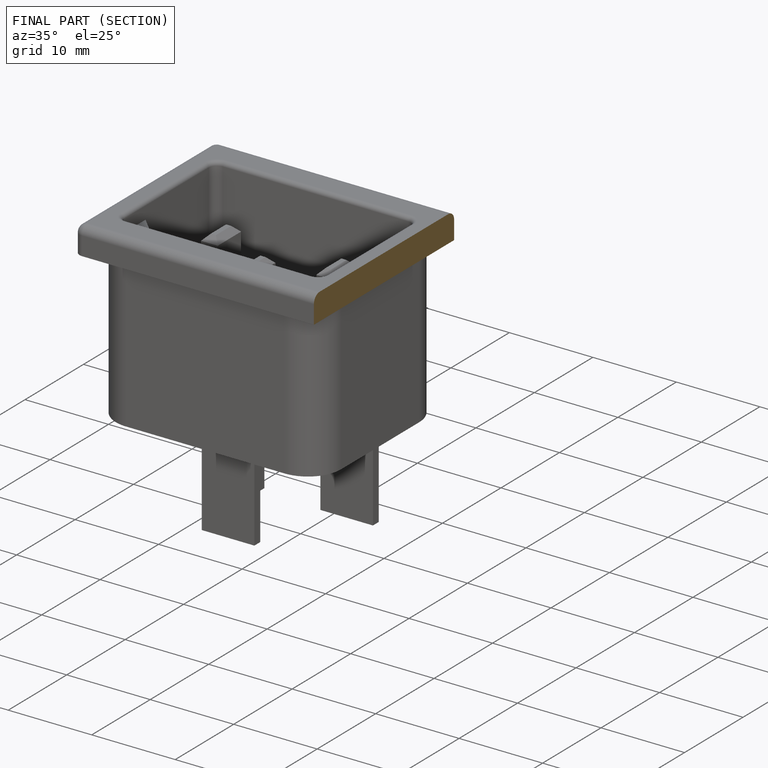
[diagram: finished part — half-section view (interior)]
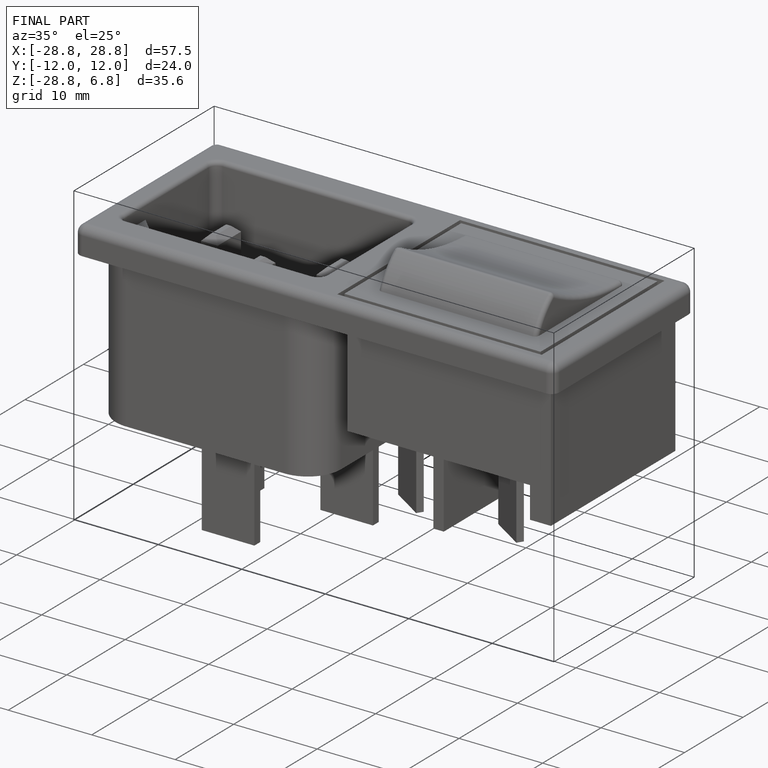
[diagram: finished part — iso view with bounding-box wireframe]
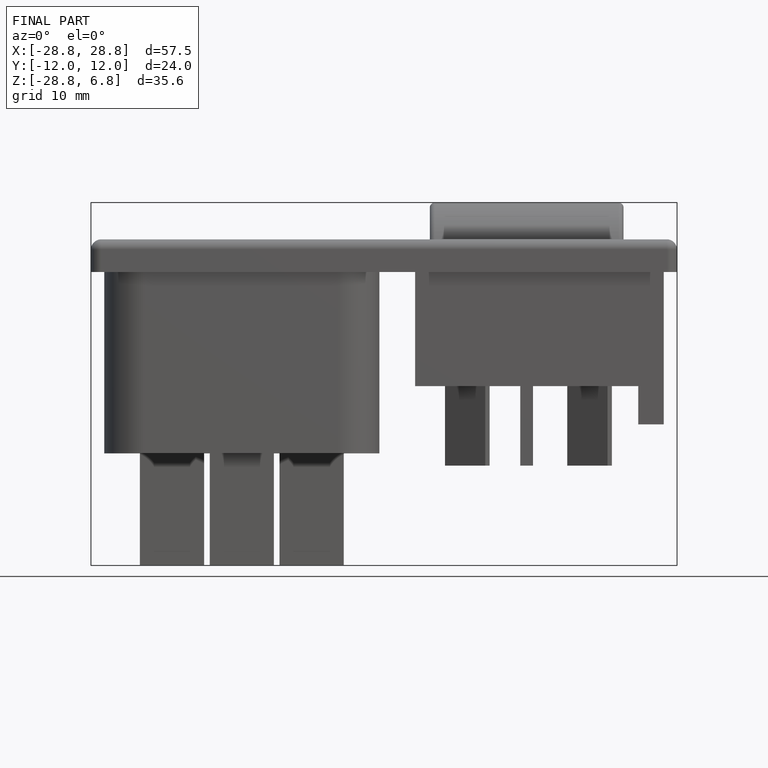
[diagram: finished part — front view with bounding-box wireframe]
